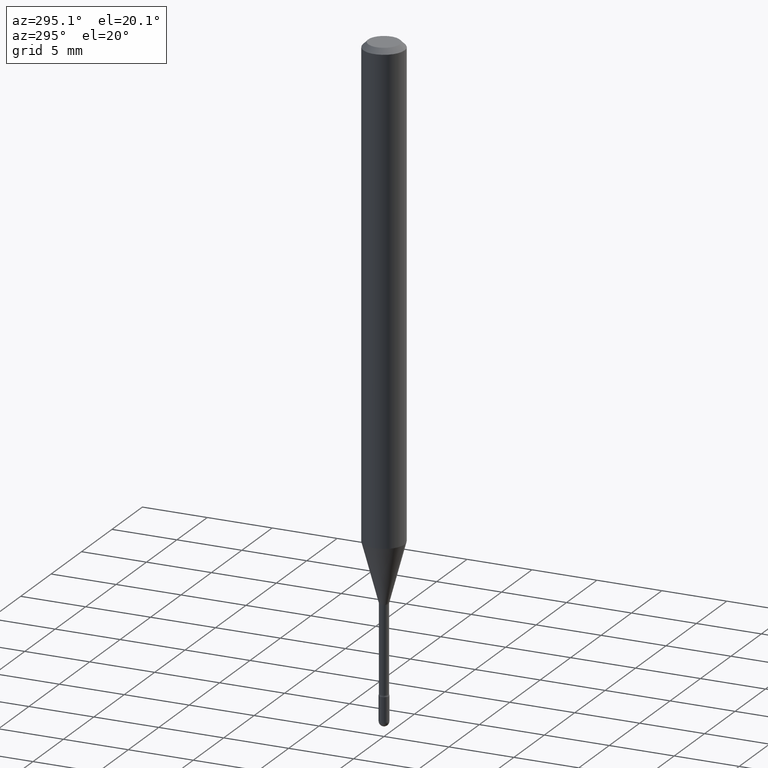
[diagram: clean part render]
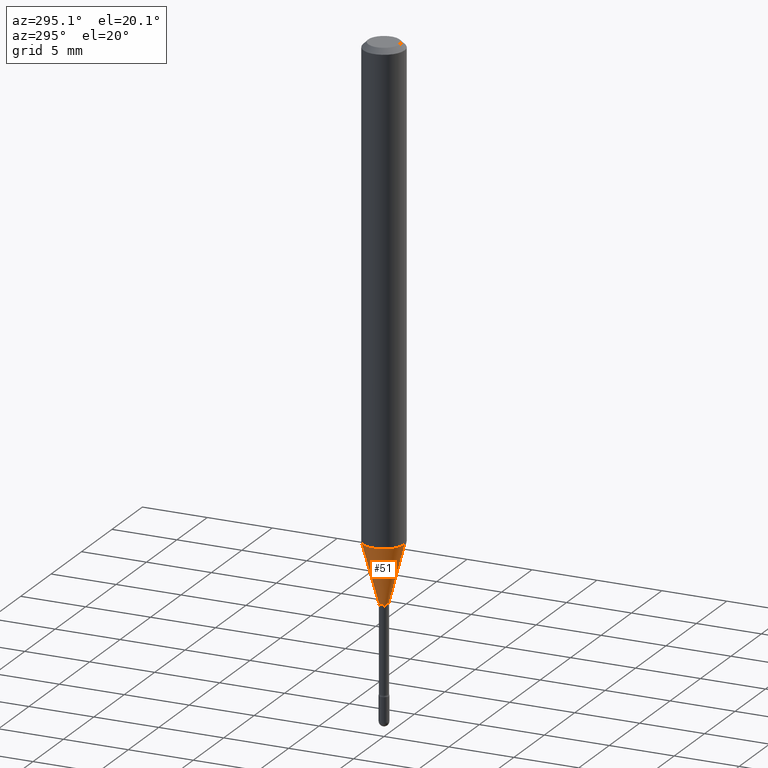
[diagram: same view with one face highlighted and labeled with its STEP entity id]
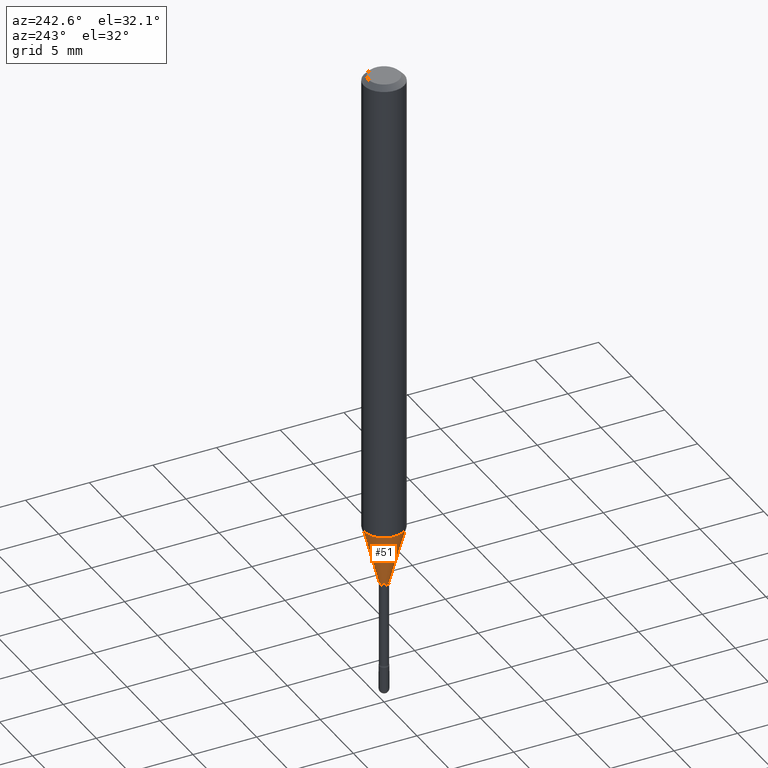
[diagram: same view with one face highlighted and labeled with its STEP entity id]
A machine part, auxiliary view. The second image highlights one B-rep face of the part: STEP entity #51.
A second angle (auxiliary view) of the same face is appended — the face is thin or edge-on in the first view.
In plain terms, the highlighted conical surface has half-angle 15 deg.
Its self-contained STEP definition (entity closure, byte-faithful):
#26 = CARTESIAN_POINT ( 'NONE',  ( 4.005913147376267210E-29, -5.719356466077926912E-15, -1.638092501787273614 ) ) ;
#51 = ADVANCED_FACE ( 'NONE', ( #400 ), #128, .T. ) ;
#53 = VECTOR ( 'NONE', #201, 39.37007874015748854 ) ;
#54 = VERTEX_POINT ( 'NONE', #58 ) ;
#58 = CARTESIAN_POINT ( 'NONE',  ( -1.020288540047823140E-16, -0.01461111260566962632, -1.638092501787273614 ) ) ;
#65 = DIRECTION ( 'NONE',  ( -2.445474320287489972E-29, 3.491473442334732541E-15, 1.000000000000000000 ) ) ;
#66 = CARTESIAN_POINT ( 'NONE',  ( -1.020288540047823140E-16, -0.01461111260566962632, -1.638092501787273614 ) ) ;
#70 = VERTEX_POINT ( 'NONE', #444 ) ;
#96 = CARTESIAN_POINT ( 'NONE',  ( 4.440892098500981149E-16, 0.06249999999999489991, -1.459368740913666862 ) ) ;
#128 = CONICAL_SURFACE ( 'NONE', #276, 0.01461111260566390693, 0.2617993877991494078 ) ;
#140 = LINE ( 'NONE', #327, #346 ) ;
#144 = DIRECTION ( 'NONE',  ( 1.839019923739594004E-15, 0.2588190451025240701, 0.9659258262890673130 ) ) ;
#201 = DIRECTION ( 'NONE',  ( -1.807323732225323828E-15, -0.2588190451025172978, 0.9659258262890690894 ) ) ;
#216 = CIRCLE ( 'NONE', #233, 0.06250000000000000000 ) ;
#228 = ORIENTED_EDGE ( 'NONE', *, *, #494, .F. ) ;
#233 = AXIS2_PLACEMENT_3D ( 'NONE', #447, #240, #504 ) ;
#240 = DIRECTION ( 'NONE',  ( -2.445474320287489972E-29, 3.491473442334732541E-15, 1.000000000000000000 ) ) ;
#252 = CIRCLE ( 'NONE', #539, 0.01461111260566390693 ) ;
#276 = AXIS2_PLACEMENT_3D ( 'NONE', #434, #395, #351 ) ;
#279 = DIRECTION ( 'NONE',  ( -6.982962677686265922E-15, -1.000000000000000000, 0.000000000000000000 ) ) ;
#287 = ORIENTED_EDGE ( 'NONE', *, *, #541, .F. ) ;
#290 = VERTEX_POINT ( 'NONE', #96 ) ;
#327 = CARTESIAN_POINT ( 'NONE',  ( 1.038181992333132303E-16, 0.01461111260565818581, -1.638092501787273614 ) ) ;
#341 = ORIENTED_EDGE ( 'NONE', *, *, #526, .T. ) ;
#346 = VECTOR ( 'NONE', #144, 39.37007874015748854 ) ;
#351 = DIRECTION ( 'NONE',  ( -6.982962677686265922E-15, -1.000000000000000000, 0.000000000000000000 ) ) ;
#395 = DIRECTION ( 'NONE',  ( -2.445474320287489972E-29, 3.491473442334732541E-15, 1.000000000000000000 ) ) ;
#400 = FACE_OUTER_BOUND ( 'NONE', #496, .T. ) ;
#406 = CARTESIAN_POINT ( 'NONE',  ( -4.364351673553560228E-16, -0.06250000000000510703, -1.459368740913666196 ) ) ;
#410 = ORIENTED_EDGE ( 'NONE', *, *, #454, .T. ) ;
#434 = CARTESIAN_POINT ( 'NONE',  ( 4.005913147376267210E-29, -5.719356466077926912E-15, -1.638092501787273614 ) ) ;
#444 = CARTESIAN_POINT ( 'NONE',  ( 2.739537045417059006E-16, 0.01461111260565818581, -1.638092501787273614 ) ) ;
#447 = CARTESIAN_POINT ( 'NONE',  ( 3.568848779734659217E-29, -5.095347201473544017E-15, -1.459368740913666640 ) ) ;
#454 = EDGE_CURVE ( 'NONE', #70, #54, #252, .T. ) ;
#494 = EDGE_CURVE ( 'NONE', #290, #525, #216, .T. ) ;
#496 = EDGE_LOOP ( 'NONE', ( #287, #410, #341, #228 ) ) ;
#504 = DIRECTION ( 'NONE',  ( -6.982962677686265922E-15, -1.000000000000000000, 4.370956789862821150E-15 ) ) ;
#525 = VERTEX_POINT ( 'NONE', #406 ) ;
#526 = EDGE_CURVE ( 'NONE', #54, #525, #538, .T. ) ;
#538 = LINE ( 'NONE', #66, #53 ) ;
#539 = AXIS2_PLACEMENT_3D ( 'NONE', #26, #65, #279 ) ;
#541 = EDGE_CURVE ( 'NONE', #70, #290, #140, .T. ) ;